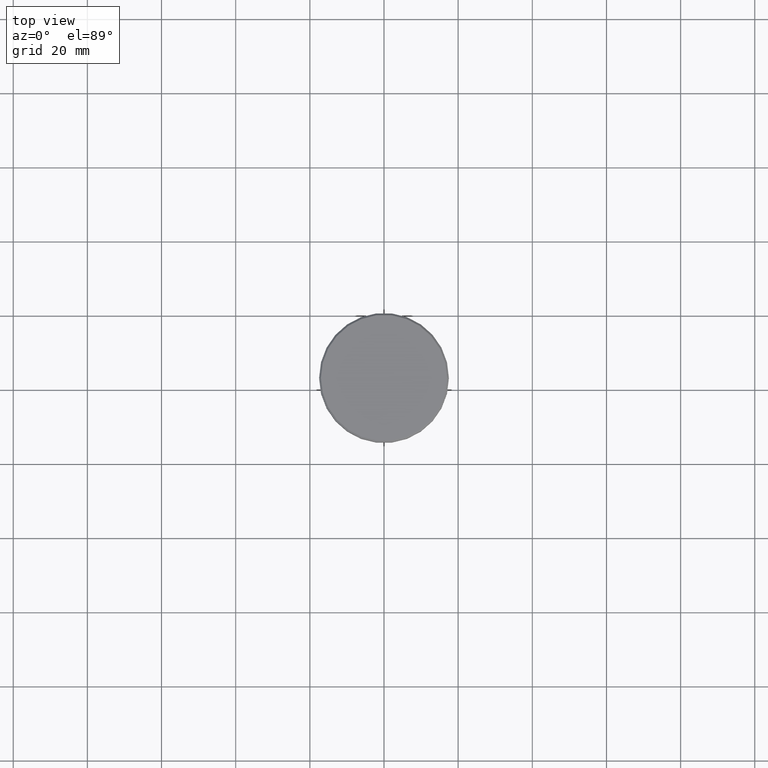
[diagram: clean part render]
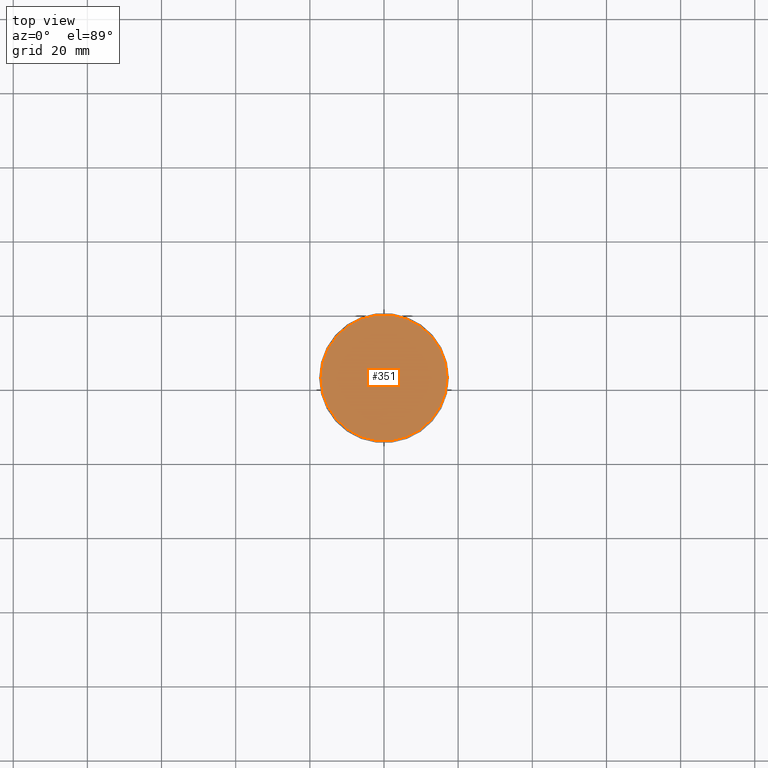
[diagram: same view with one face highlighted and labeled with its STEP entity id]
A machine part, top view. The second image highlights one B-rep face of the part: STEP entity #351.
In plain terms, the highlighted planar face has unit normal (0, -0, 1).
Its self-contained STEP definition (entity closure, byte-faithful):
#209 = EDGE_CURVE ( 'NONE', #695, #537, #1115, .T. ) ;
#213 = DIRECTION ( 'NONE',  ( -0.000000000000000000, -0.000000000000000000, 1.000000000000000000 ) ) ;
#236 = ORIENTED_EDGE ( 'NONE', *, *, #847, .T. ) ;
#280 = PLANE ( 'NONE',  #696 ) ;
#351 = ADVANCED_FACE ( 'NONE', ( #995 ), #280, .T. ) ;
#476 = CARTESIAN_POINT ( 'NONE',  ( 0.000000000000000000, 0.000000000000000000, 0.000000000000000000 ) ) ;
#482 = DIRECTION ( 'NONE',  ( 1.000000000000000000, 0.000000000000000000, 0.000000000000000000 ) ) ;
#504 = CARTESIAN_POINT ( 'NONE',  ( -17.00000000000001421, 0.000000000000000000, 0.000000000000000000 ) ) ;
#533 = CIRCLE ( 'NONE', #554, 17.00000000000001421 ) ;
#537 = VERTEX_POINT ( 'NONE', #504 ) ;
#541 = ORIENTED_EDGE ( 'NONE', *, *, #209, .T. ) ;
#554 = AXIS2_PLACEMENT_3D ( 'NONE', #1015, #753, #482 ) ;
#592 = DIRECTION ( 'NONE',  ( 1.000000000000000000, 0.000000000000000000, 0.000000000000000000 ) ) ;
#603 = CARTESIAN_POINT ( 'NONE',  ( 0.000000000000000000, 0.000000000000000000, 0.000000000000000000 ) ) ;
#692 = CARTESIAN_POINT ( 'NONE',  ( 17.00000000000001421, 2.112515728529185250E-15, 0.000000000000000000 ) ) ;
#695 = VERTEX_POINT ( 'NONE', #692 ) ;
#696 = AXIS2_PLACEMENT_3D ( 'NONE', #476, #1012, #821 ) ;
#753 = DIRECTION ( 'NONE',  ( -0.000000000000000000, -0.000000000000000000, 1.000000000000000000 ) ) ;
#798 = EDGE_LOOP ( 'NONE', ( #236, #541 ) ) ;
#821 = DIRECTION ( 'NONE',  ( 1.000000000000000000, 0.000000000000000000, 0.000000000000000000 ) ) ;
#847 = EDGE_CURVE ( 'NONE', #537, #695, #533, .T. ) ;
#964 = AXIS2_PLACEMENT_3D ( 'NONE', #603, #213, #592 ) ;
#995 = FACE_OUTER_BOUND ( 'NONE', #798, .T. ) ;
#1012 = DIRECTION ( 'NONE',  ( 0.000000000000000000, -0.000000000000000000, 1.000000000000000000 ) ) ;
#1015 = CARTESIAN_POINT ( 'NONE',  ( 0.000000000000000000, 0.000000000000000000, 0.000000000000000000 ) ) ;
#1115 = CIRCLE ( 'NONE', #964, 17.00000000000001421 ) ;